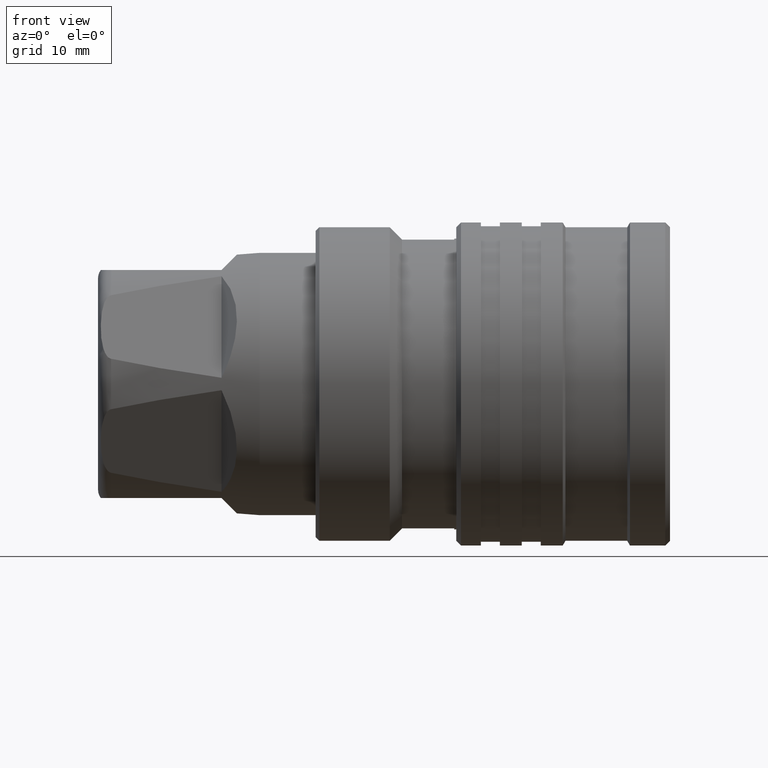
[diagram: clean part render]
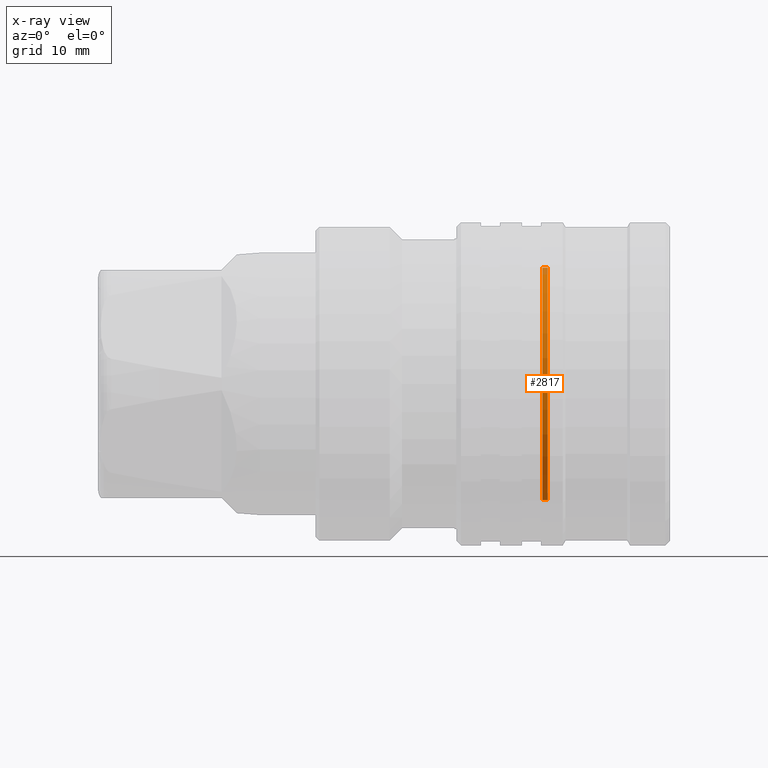
[diagram: x-ray — body ghosted, one internal face saturated and labeled with its STEP entity id]
A machine part, front view, then the same camera in x-ray: the body is ghosted and one INTERNAL B-rep face — a face not visible from any outside direction — is saturated and labeled: STEP entity #2817.
In plain terms, the highlighted cylindrical surface (partial cylindrical patch) has radius 12.2391 mm, axis along (-1, 0, 0).
Its self-contained STEP definition (entity closure, byte-faithful):
#298 = AXIS2_PLACEMENT_3D ( 'NONE', #2771, #2769, #2768 ) ;
#513 = AXIS2_PLACEMENT_3D ( 'NONE', #1973, #1971, #1970 ) ;
#514 = AXIS2_PLACEMENT_3D ( 'NONE', #1958, #1956, #1955 ) ;
#894 = EDGE_LOOP ( 'NONE', ( #1013, #1014, #1015, #1016 ) ) ;
#1013 = ORIENTED_EDGE ( 'NONE', *, *, #4226, .F. ) ;
#1014 = ORIENTED_EDGE ( 'NONE', *, *, #4227, .T. ) ;
#1015 = ORIENTED_EDGE ( 'NONE', *, *, #4228, .T. ) ;
#1016 = ORIENTED_EDGE ( 'NONE', *, *, #4229, .F. ) ;
#1312 = CARTESIAN_POINT ( 'NONE',  ( 47.33999231042489700, 0.0000000000000000000, 12.23914676379836000 ) ) ;
#1374 = CARTESIAN_POINT ( 'NONE',  ( 46.74999231043290100, 1.498863190858034600E-015, -12.23914676379836000 ) ) ;
#1767 = VERTEX_POINT ( 'NONE', #1374 ) ;
#1784 = VERTEX_POINT ( 'NONE', #1312 ) ;
#1838 = LINE ( 'NONE', #1966, #2008 ) ;
#1949 = DIRECTION ( 'NONE',  ( -1.000000000000000000, 0.0000000000000000000, 0.0000000000000000000 ) ) ;
#1952 = CARTESIAN_POINT ( 'NONE',  ( 76.95419073289978900, 0.0000000000000000000, 12.23914676379836000 ) ) ;
#1955 = DIRECTION ( 'NONE',  ( 0.0000000000000000000, 0.0000000000000000000, 1.000000000000000000 ) ) ;
#1954 = VECTOR ( 'NONE', #1949, 1000.000000000000000 ) ;
#1956 = DIRECTION ( 'NONE',  ( -1.000000000000000000, 0.0000000000000000000, 0.0000000000000000000 ) ) ;
#1958 = CARTESIAN_POINT ( 'NONE',  ( 46.74999231043290100, 0.0000000000000000000, 0.0000000000000000000 ) ) ;
#1964 = DIRECTION ( 'NONE',  ( -1.000000000000000000, 0.0000000000000000000, 0.0000000000000000000 ) ) ;
#1966 = CARTESIAN_POINT ( 'NONE',  ( 76.95419073289978900, 1.498863190858034600E-015, -12.23914676379836000 ) ) ;
#1970 = DIRECTION ( 'NONE',  ( 0.0000000000000000000, 0.0000000000000000000, 1.000000000000000000 ) ) ;
#1971 = DIRECTION ( 'NONE',  ( -1.000000000000000000, 0.0000000000000000000, 0.0000000000000000000 ) ) ;
#1973 = CARTESIAN_POINT ( 'NONE',  ( 47.33999231042489700, 0.0000000000000000000, 0.0000000000000000000 ) ) ;
#1999 = CIRCLE ( 'NONE', #513, 12.23914676379836000 ) ;
#2008 = VECTOR ( 'NONE', #1964, 1000.000000000000000 ) ;
#2045 = LINE ( 'NONE', #1952, #1954 ) ;
#2047 = CIRCLE ( 'NONE', #514, 12.23914676379836000 ) ;
#2172 = CARTESIAN_POINT ( 'NONE',  ( 46.74999231043290100, 0.0000000000000000000, 12.23914676379836000 ) ) ;
#2635 = CARTESIAN_POINT ( 'NONE',  ( 47.33999231042489700, 1.498863190858034600E-015, -12.23914676379836000 ) ) ;
#2768 = DIRECTION ( 'NONE',  ( 0.0000000000000000000, 0.0000000000000000000, 1.000000000000000000 ) ) ;
#2769 = DIRECTION ( 'NONE',  ( -1.000000000000000000, 0.0000000000000000000, 0.0000000000000000000 ) ) ;
#2771 = CARTESIAN_POINT ( 'NONE',  ( 76.95419073289978900, 0.0000000000000000000, 0.0000000000000000000 ) ) ;
#2817 = ADVANCED_FACE ( 'NONE', ( #3609 ), #3627, .F. ) ;
#3245 = VERTEX_POINT ( 'NONE', #2635 ) ;
#3378 = VERTEX_POINT ( 'NONE', #2172 ) ;
#3609 = FACE_OUTER_BOUND ( 'NONE', #894, .T. ) ;
#3627 = CYLINDRICAL_SURFACE ( 'NONE', #298, 12.23914676379836000 ) ;
#4226 = EDGE_CURVE ( 'NONE', #3245, #1784, #1999, .T. ) ;
#4227 = EDGE_CURVE ( 'NONE', #3245, #1767, #1838, .T. ) ;
#4228 = EDGE_CURVE ( 'NONE', #1767, #3378, #2047, .T. ) ;
#4229 = EDGE_CURVE ( 'NONE', #1784, #3378, #2045, .T. ) ;